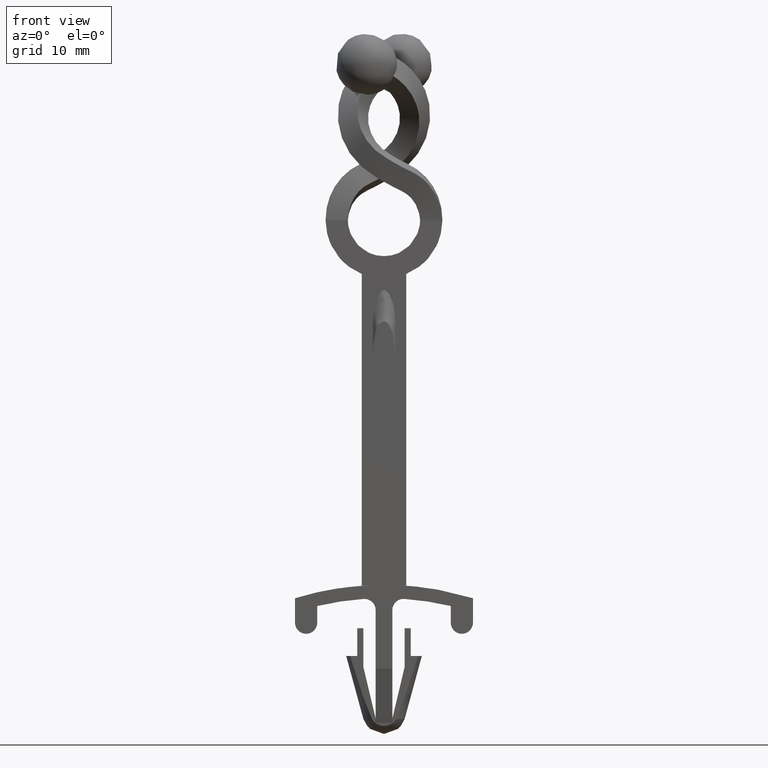
[diagram: clean part render]
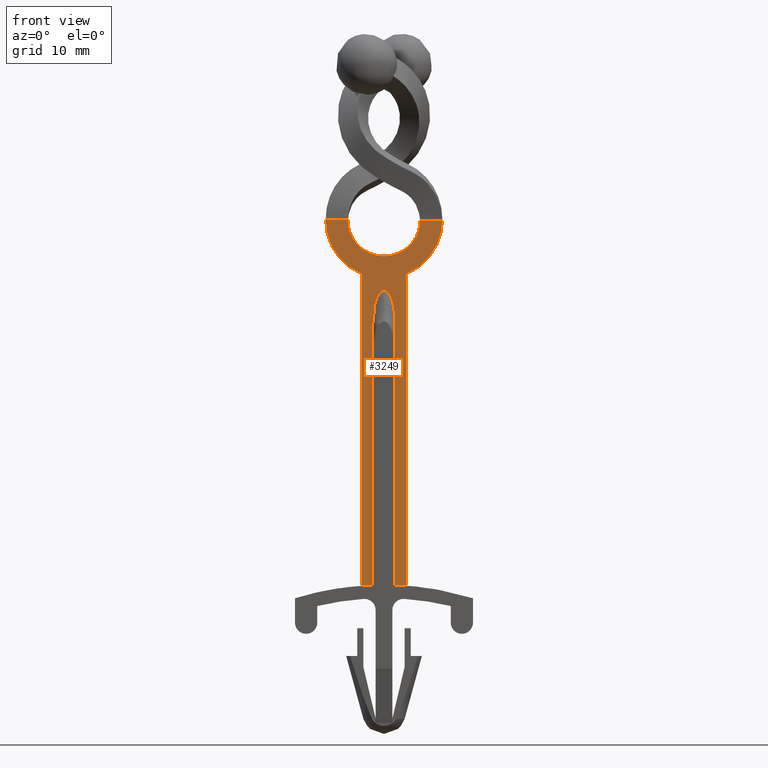
[diagram: same view with one face highlighted and labeled with its STEP entity id]
A machine part, front view. The second image highlights one B-rep face of the part: STEP entity #3249.
In plain terms, the highlighted face is a freeform B-spline surface patch.
Its self-contained STEP definition (entity closure, byte-faithful):
#535=CARTESIAN_POINT('',(3.249703976769075,-1.000007423554086,-0.049222448921413));
#536=VERTEX_POINT('',#535);
#562=CARTESIAN_POINT('',(2.201063E-031,-1.0,-3.249995999999895));
#563=VERTEX_POINT('',#562);
#571=CARTESIAN_POINT('',(2.201063E-031,-1.0,-3.249995999999895));
#572=CARTESIAN_POINT('',(0.647222304944109,-1.000000750626352,-3.249846760913273));
#573=CARTESIAN_POINT('',(1.243737870015517,-1.000001724655510,-3.002605056861897));
#574=CARTESIAN_POINT('',(1.841639145805459,-1.000002700947347,-2.754789008234007));
#575=CARTESIAN_POINT('',(2.298133901998126,-1.000003751831874,-2.298094801528055));
#576=CARTESIAN_POINT('',(2.755689099382854,-1.000004805157614,-1.840339690304364));
#577=CARTESIAN_POINT('',(3.002665858202397,-1.000005772909866,-1.243720533971515));
#578=CARTESIAN_POINT('',(3.240491254373867,-1.000006704803473,-0.669208228050421));
#579=CARTESIAN_POINT('',(3.249703976769075,-1.000007423554086,-0.049222448921413));
#580=B_SPLINE_CURVE_WITH_KNOTS('',2,(#571,#572,#573,#574,#575,#576,#577,#578,#579),.UNSPECIFIED.,.F.,.U.,(3,2,2,2,3),(0.009531651745521,0.259531651745521,0.509531651745521,0.759531651745521,1.0),.UNSPECIFIED.);
#581=EDGE_CURVE('',#563,#536,#580,.T.);
#782=CARTESIAN_POINT('',(5.249820342743500,-1.000006138446738,-0.040918356316616));
#783=VERTEX_POINT('',#782);
#1009=CARTESIAN_POINT('',(3.249703976769075,-1.000007423554086,-0.049222448921413));
#1010=CARTESIAN_POINT('',(3.417034090578087,-1.000007316356899,-0.048518613551816));
#1011=CARTESIAN_POINT('',(3.584364219475023,-1.000007205392548,-0.047818325929765));
#1012=CARTESIAN_POINT('',(3.751694357628718,-1.000007098195361,-0.047120243029568));
#1013=CARTESIAN_POINT('',(3.919024495767081,-1.000006990998174,-0.046422160129434));
#1014=CARTESIAN_POINT('',(4.086354643685216,-1.000006883800987,-0.045726395549787));
#1015=CARTESIAN_POINT('',(4.253684798764383,-1.000006776603800,-0.045032343482122));
#1016=CARTESIAN_POINT('',(4.585729955301074,-1.000006563884780,-0.043655086481772));
#1017=CARTESIAN_POINT('',(4.917775139790267,-1.000006351165759,-0.042284492958098));
#1018=CARTESIAN_POINT('',(5.249820342743500,-1.000006138446738,-0.040918356316616));
#1019=B_SPLINE_CURVE_WITH_KNOTS('',3,(#1009,#1010,#1011,#1012,#1013,#1014,#1015,#1016,#1017,#1018),.UNSPECIFIED.,.F.,.U.,(4,3,3,4),(0.0,0.000501989808518,0.001003979616968,0.002000113783360),.UNSPECIFIED.);
#1020=EDGE_CURVE('',#536,#783,#1019,.T.);
#1357=CARTESIAN_POINT('',(-2.0,-1.0,-4.851874954671960));
#1358=VERTEX_POINT('',#1357);
#1364=CARTESIAN_POINT('',(-5.250000988660920,-1.000071693797540,0.026189324703322));
#1365=VERTEX_POINT('',#1364);
#1366=CARTESIAN_POINT('',(-2.0,-1.0,-4.851874954671960));
#1367=CARTESIAN_POINT('',(-3.979020112503630,-1.0,-4.037826442187549));
#1368=CARTESIAN_POINT('',(-5.256724799600010,-1.000071693797540,-2.113705620554136));
#1369=CARTESIAN_POINT('',(-5.250000988660920,-1.000071693797540,0.026189324703322));
#1370=B_SPLINE_CURVE_WITH_KNOTS('',3,(#1366,#1367,#1368,#1369),.UNSPECIFIED.,.F.,.U.,(4,4),(0.0,6.419716526245349),.UNSPECIFIED.);
#1371=EDGE_CURVE('',#1358,#1365,#1370,.T.);
#1430=CARTESIAN_POINT('',(-3.249999672267835,-1.000062137348916,0.021922033799874));
#1431=VERTEX_POINT('',#1430);
#1447=CARTESIAN_POINT('',(2.201063E-031,-1.0,-3.249995999999895));
#1448=CARTESIAN_POINT('',(-0.856232165204303,-1.0,-3.249893103908949));
#1449=CARTESIAN_POINT('',(-1.700573641429874,-1.0,-2.898944316011512));
#1450=CARTESIAN_POINT('',(-2.304364032031880,-1.0,-2.291844080848708));
#1451=CARTESIAN_POINT('',(-2.918641480288291,-1.0,-1.674199300315105));
#1452=CARTESIAN_POINT('',(-3.251893865399735,-1.000062137348916,-0.849179722821699));
#1453=CARTESIAN_POINT('',(-3.249999672267835,-1.000062137348916,0.021922033799874));
#1454=B_SPLINE_CURVE_WITH_KNOTS('',3,(#1447,#1448,#1449,#1450,#1451,#1452,#1453),.UNSPECIFIED.,.F.,.U.,(4,3,4),(0.0,2.568696514160927,5.182007962345260),.UNSPECIFIED.);
#1455=EDGE_CURVE('',#563,#1431,#1454,.T.);
#1586=CARTESIAN_POINT('',(-3.249999672267835,-1.000062137348916,0.021922033799874));
#1587=CARTESIAN_POINT('',(-3.417335670085158,-1.000062937291466,0.022279055860416));
#1588=CARTESIAN_POINT('',(-3.584671667497329,-1.000063732762252,0.022636178827416));
#1589=CARTESIAN_POINT('',(-3.752007665303828,-1.000064532704802,0.022993203584083));
#1590=CARTESIAN_POINT('',(-3.919343663110320,-1.000065332647351,0.023350228340750));
#1591=CARTESIAN_POINT('',(-4.086679660911598,-1.000066132589901,0.023707254396582));
#1592=CARTESIAN_POINT('',(-4.254015658708020,-1.000066932532451,0.024064281661223));
#1593=CARTESIAN_POINT('',(-4.586010768710554,-1.000068519620814,0.024772624800533));
#1594=CARTESIAN_POINT('',(-4.918005878694001,-1.000070106709177,0.025480972693583));
#1595=CARTESIAN_POINT('',(-5.250000988660920,-1.000071693797540,0.026189324703322));
#1596=B_SPLINE_CURVE_WITH_KNOTS('',3,(#1586,#1587,#1588,#1589,#1590,#1591,#1592,#1593,#1594,#1595),.UNSPECIFIED.,.F.,.U.,(4,3,3,4),(0.0,0.000501989808432,0.001003979616864,0.001999928867863),.UNSPECIFIED.);
#1597=EDGE_CURVE('',#1431,#1365,#1596,.T.);
#2910=CARTESIAN_POINT('',(2.0,-1.0,-4.851873448849520));
#2911=VERTEX_POINT('',#2910);
#2925=CARTESIAN_POINT('',(2.0,-1.0,-4.851873448849520));
#2926=CARTESIAN_POINT('',(2.004149364104677,-1.000000003951953,-4.850164847576616));
#2927=CARTESIAN_POINT('',(2.008297261170494,-1.000000007909503,-4.848448869202991));
#2928=CARTESIAN_POINT('',(2.972574699879634,-1.000000927936176,-4.449528837017116));
#2929=CARTESIAN_POINT('',(3.711771195839420,-1.000002012398060,-3.711018887917421));
#2930=CARTESIAN_POINT('',(4.449906683925090,-1.000003095303358,-2.973568961255875));
#2931=CARTESIAN_POINT('',(4.850100203492648,-1.000004177778500,-2.008473954480580));
#2932=CARTESIAN_POINT('',(5.241889821555274,-1.000005237522103,-1.063645551194049));
#2933=CARTESIAN_POINT('',(5.249820342743500,-1.000006138446738,-0.040918356316616));
#2934=B_SPLINE_CURVE_WITH_KNOTS('',2,(#2925,#2926,#2927,#2928,#2929,#2930,#2931,#2932,#2933),.UNSPECIFIED.,.F.,.U.,(3,2,2,2,3),(0.248925351872025,0.250000000000000,0.500000000000000,0.750000000000000,0.995101909204871),.UNSPECIFIED.);
#2935=EDGE_CURVE('',#2911,#783,#2934,.T.);
#3048=CARTESIAN_POINT('',(1.0,-1.0,-9.280109749463540));
#3049=VERTEX_POINT('',#3048);
#3055=CARTESIAN_POINT('',(-1.0,-1.0,-9.280109749463652));
#3056=VERTEX_POINT('',#3055);
#3057=CARTESIAN_POINT('',(-1.0,-1.0,-9.280109749463641));
#3058=CARTESIAN_POINT('',(-1.0,-1.0,-6.306896000000036));
#3059=CARTESIAN_POINT('',(-2.449213E-016,-1.0,-6.306896000000036));
#3060=CARTESIAN_POINT('',(1.0,-1.0,-6.306896000000036));
#3061=CARTESIAN_POINT('',(1.0,-1.0,-9.280109749463540));
#3069=(BOUNDED_CURVE()B_SPLINE_CURVE(2,(#3057,#3058,#3059,#3060,#3061),.UNSPECIFIED.,.F.,.U.)B_SPLINE_CURVE_WITH_KNOTS((3,2,3),(0.0,0.500000000000000,1.0),.UNSPECIFIED.)CURVE()GEOMETRIC_REPRESENTATION_ITEM()RATIONAL_B_SPLINE_CURVE((1.0,0.707106781186547,1.0,0.707106781186547,1.0))REPRESENTATION_ITEM(''));
#3070=EDGE_CURVE('',#3056,#3049,#3069,.T.);
#3093=CARTESIAN_POINT('',(-2.0,-1.0,-32.873453926080998));
#3094=VERTEX_POINT('',#3093);
#3100=CARTESIAN_POINT('',(-2.0,-1.0,-32.873453926080998));
#3101=CARTESIAN_POINT('',(-2.0,-1.0,-4.851874954671960));
#3102=QUASI_UNIFORM_CURVE('',1,(#3100,#3101),.UNSPECIFIED.,.F.,.U.);
#3103=EDGE_CURVE('',#3094,#1358,#3102,.T.);
#3121=CARTESIAN_POINT('',(2.0,-1.0,-32.873443188109647));
#3122=VERTEX_POINT('',#3121);
#3123=CARTESIAN_POINT('',(2.0,-1.0,-32.873443188109647));
#3124=CARTESIAN_POINT('',(2.0,-1.0,-4.851873448849520));
#3125=QUASI_UNIFORM_CURVE('',1,(#3123,#3124),.UNSPECIFIED.,.F.,.U.);
#3126=EDGE_CURVE('',#3122,#2911,#3125,.T.);
#3193=CARTESIAN_POINT('',(-5.774467043813879,-1.0,1.669526441314104));
#3194=CARTESIAN_POINT('',(-5.774467043813879,-1.0,-34.516791925128977));
#3195=CARTESIAN_POINT('',(5.774286679523614,-1.0,1.669526441314104));
#3196=CARTESIAN_POINT('',(5.774286679523614,-1.0,-34.516791925128977));
#3197=B_SPLINE_SURFACE_WITH_KNOTS('',1,1,((#3193,#3195),(#3194,#3196)),.UNSPECIFIED.,.F.,.F.,.U.,(2,2),(2,2),(0.0,36.186318366443082),(0.0,11.548753723337491),.UNSPECIFIED.);
#3198=ORIENTED_EDGE('',*,*,#1371,.F.);
#3199=ORIENTED_EDGE('',*,*,#3103,.F.);
#3200=CARTESIAN_POINT('',(-1.0,-1.0,-32.818346257547653));
#3201=VERTEX_POINT('',#3200);
#3202=CARTESIAN_POINT('',(-1.999999999999996,-1.0,-32.873453926080977));
#3203=CARTESIAN_POINT('',(-1.500506117890837,-1.0,-32.836715927354753));
#3204=CARTESIAN_POINT('',(-1.000000000000005,-1.0,-32.818346257547617));
#3212=(BOUNDED_CURVE()B_SPLINE_CURVE(2,(#3202,#3203,#3204),.UNSPECIFIED.,.F.,.U.)CURVE()GEOMETRIC_REPRESENTATION_ITEM()QUASI_UNIFORM_CURVE()RATIONAL_B_SPLINE_CURVE((1.0,0.999831344922759,1.0))REPRESENTATION_ITEM(''));
#3213=EDGE_CURVE('',#3094,#3201,#3212,.T.);
#3214=ORIENTED_EDGE('',*,*,#3213,.T.);
#3215=CARTESIAN_POINT('',(-1.0,-1.0,-32.818346257547653));
#3216=CARTESIAN_POINT('',(-1.0,-1.0,-9.280109749463652));
#3217=QUASI_UNIFORM_CURVE('',1,(#3215,#3216),.UNSPECIFIED.,.F.,.U.);
#3218=EDGE_CURVE('',#3201,#3056,#3217,.T.);
#3219=ORIENTED_EDGE('',*,*,#3218,.T.);
#3220=ORIENTED_EDGE('',*,*,#3070,.T.);
#3221=CARTESIAN_POINT('',(1.0,-1.0,-32.818340899419802));
#3222=VERTEX_POINT('',#3221);
#3223=CARTESIAN_POINT('',(1.0,-1.0,-9.280109749463540));
#3224=CARTESIAN_POINT('',(1.0,-1.0,-32.818340899419802));
#3225=QUASI_UNIFORM_CURVE('',1,(#3223,#3224),.UNSPECIFIED.,.F.,.U.);
#3226=EDGE_CURVE('',#3049,#3222,#3225,.T.);
#3227=ORIENTED_EDGE('',*,*,#3226,.T.);
#3228=CARTESIAN_POINT('',(0.999999999999993,-1.0,-32.818340899419802));
#3229=CARTESIAN_POINT('',(1.500506068331761,-1.0,-32.836707882020555));
#3230=CARTESIAN_POINT('',(1.999999999999998,-1.0,-32.873443188109647));
#3238=(BOUNDED_CURVE()B_SPLINE_CURVE(2,(#3228,#3229,#3230),.UNSPECIFIED.,.F.,.U.)CURVE()GEOMETRIC_REPRESENTATION_ITEM()QUASI_UNIFORM_CURVE()RATIONAL_B_SPLINE_CURVE((1.0,0.999831345022462,1.0))REPRESENTATION_ITEM(''));
#3239=EDGE_CURVE('',#3222,#3122,#3238,.T.);
#3240=ORIENTED_EDGE('',*,*,#3239,.T.);
#3241=ORIENTED_EDGE('',*,*,#3126,.T.);
#3242=ORIENTED_EDGE('',*,*,#2935,.T.);
#3243=ORIENTED_EDGE('',*,*,#1020,.F.);
#3244=ORIENTED_EDGE('',*,*,#581,.F.);
#3245=ORIENTED_EDGE('',*,*,#1455,.T.);
#3246=ORIENTED_EDGE('',*,*,#1597,.T.);
#3247=EDGE_LOOP('',(#3198,#3199,#3214,#3219,#3220,#3227,#3240,#3241,#3242,#3243,#3244,#3245,#3246));
#3248=FACE_OUTER_BOUND('',#3247,.T.);
#3249=ADVANCED_FACE('',(#3248),#3197,.T.);